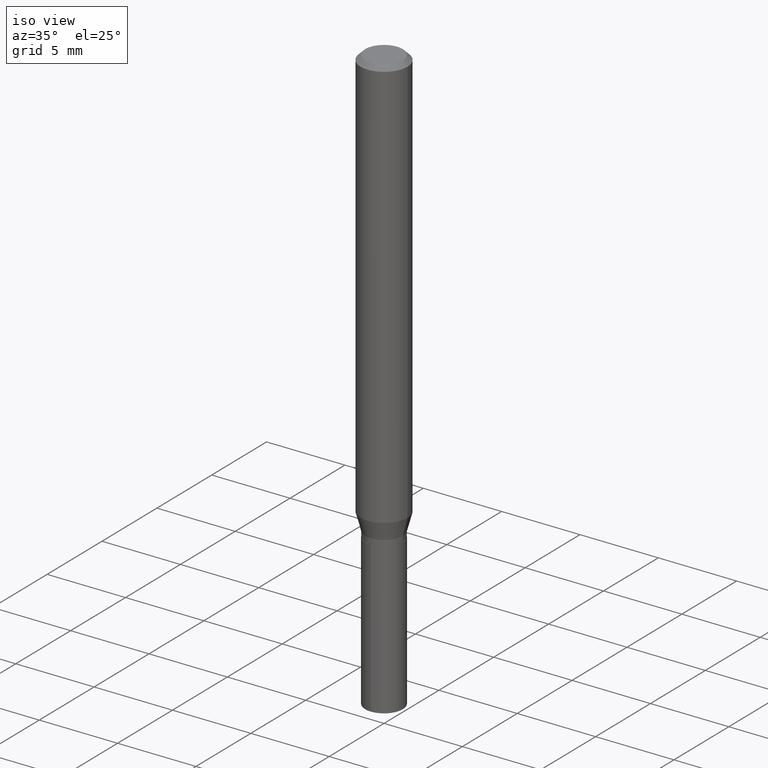
[diagram: clean part render]
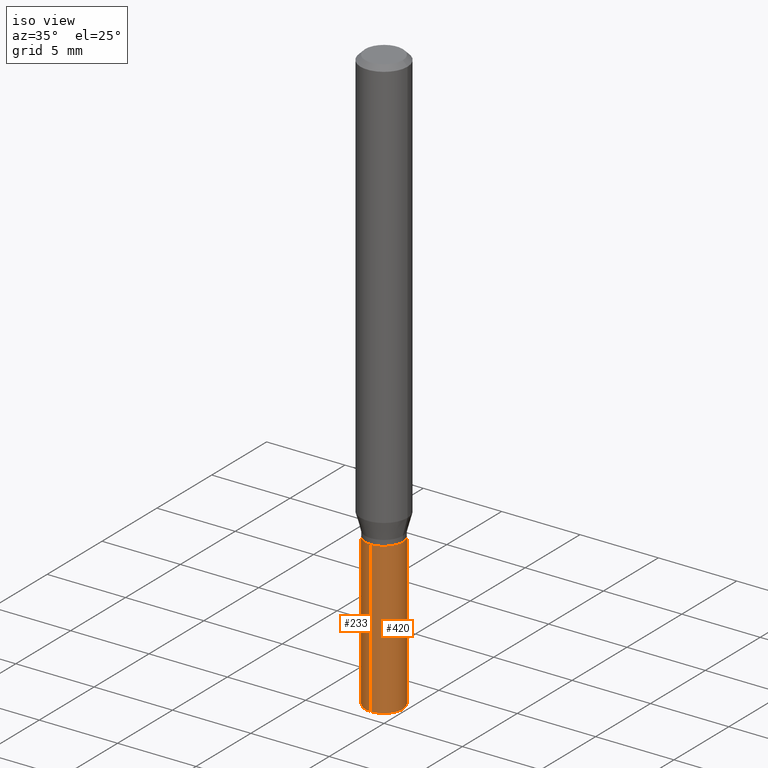
[diagram: same view with one multi-face feature highlighted, each face labeled with its STEP entity id]
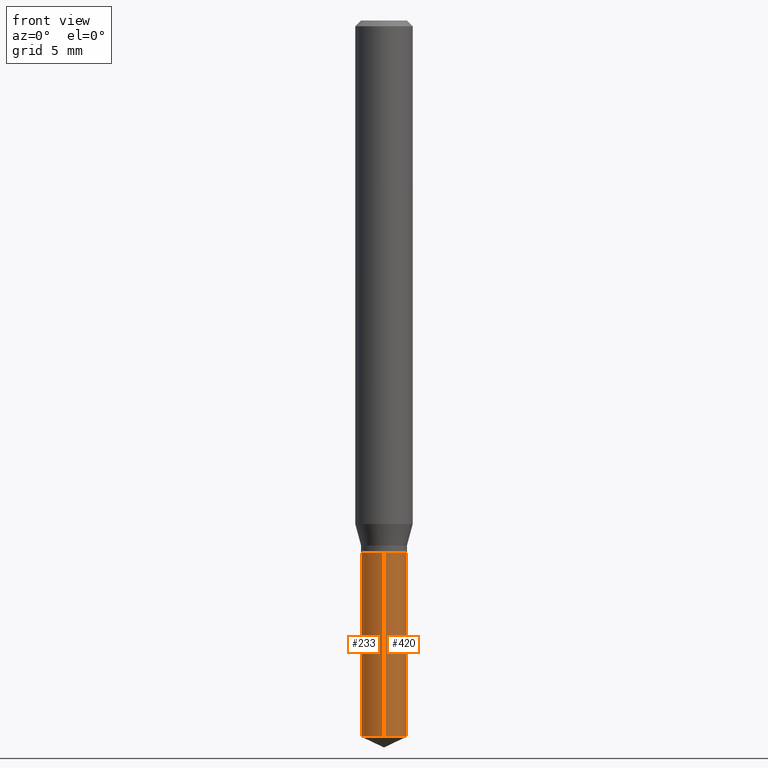
[diagram: same view with one multi-face feature highlighted, each face labeled with its STEP entity id]
A machine part, iso view. The highlighted faces form ONE feature: a constant-radius fillet chain: 2 tangent blend faces with common blend radius 1.2001 mm. The faces share edges in the B-rep.
A second angle (front view) of the same feature is appended — it is thin or edge-on in the first view.
Their STEP definitions:
[1] entity #420 (Cylinder):
#13 = CIRCLE ( 'NONE', #347, 0.04724999999999999339 ) ;
#17 = VERTEX_POINT ( 'NONE', #250 ) ;
#24 = DIRECTION ( 'NONE',  ( -2.445358326776455510E-29, 3.491639551644474585E-15, 1.000000000000000000 ) ) ;
#38 = DIRECTION ( 'NONE',  ( -2.445358326776455790E-29, 3.491639551644474585E-15, 1.000000000000000000 ) ) ;
#44 = EDGE_CURVE ( 'NONE', #17, #242, #376, .T. ) ;
#88 = DIRECTION ( 'NONE',  ( -2.445358326776455510E-29, 3.491639551644474585E-15, 1.000000000000000000 ) ) ;
#92 = CARTESIAN_POINT ( 'NONE',  ( 2.676565608369631794E-29, -3.821426325363822773E-15, -1.094499999999999806 ) ) ;
#93 = CARTESIAN_POINT ( 'NONE',  ( 2.676565608369631794E-29, -3.821426325363822773E-15, -1.094499999999999806 ) ) ;
#94 = EDGE_CURVE ( 'NONE', #240, #17, #13, .T. ) ;
#139 = FACE_OUTER_BOUND ( 'NONE', #188, .T. ) ;
#141 = VECTOR ( 'NONE', #393, 39.37007874015748143 ) ;
#152 = CARTESIAN_POINT ( 'NONE',  ( 3.604742842283059142E-29, -5.146737346403543071E-15, -1.474066963152176557 ) ) ;
#188 = EDGE_LOOP ( 'NONE', ( #404, #235, #344, #488 ) ) ;
#190 = DIRECTION ( 'NONE',  ( -6.982962677686265922E-15, -1.000000000000000000, 5.781688875479922944E-15 ) ) ;
#235 = ORIENTED_EDGE ( 'NONE', *, *, #44, .T. ) ;
#239 = LINE ( 'NONE', #294, #141 ) ;
#240 = VERTEX_POINT ( 'NONE', #352 ) ;
#242 = VERTEX_POINT ( 'NONE', #475 ) ;
#250 = CARTESIAN_POINT ( 'NONE',  ( 3.357314426466831841E-16, 0.04724999999999483086, -1.474066963152176779 ) ) ;
#264 = EDGE_CURVE ( 'NONE', #265, #242, #487, .T. ) ;
#265 = VERTEX_POINT ( 'NONE', #436 ) ;
#276 = EDGE_CURVE ( 'NONE', #240, #265, #239, .T. ) ;
#294 = CARTESIAN_POINT ( 'NONE',  ( -3.299449865206492354E-16, -0.04725000000000382366, -1.094499999999999806 ) ) ;
#306 = VECTOR ( 'NONE', #38, 39.37007874015748143 ) ;
#340 = AXIS2_PLACEMENT_3D ( 'NONE', #92, #88, #447 ) ;
#344 = ORIENTED_EDGE ( 'NONE', *, *, #264, .F. ) ;
#347 = AXIS2_PLACEMENT_3D ( 'NONE', #152, #373, #190 ) ;
#352 = CARTESIAN_POINT ( 'NONE',  ( -3.299449865206398677E-16, -0.04725000000000512818, -1.474066963152176113 ) ) ;
#371 = CARTESIAN_POINT ( 'NONE',  ( 3.357314426466740136E-16, 0.04724999999999617006, -1.094500000000000028 ) ) ;
#373 = DIRECTION ( 'NONE',  ( -2.445358326776455510E-29, 3.491639551644474585E-15, 1.000000000000000000 ) ) ;
#376 = LINE ( 'NONE', #371, #306 ) ;
#388 = AXIS2_PLACEMENT_3D ( 'NONE', #93, #24, #479 ) ;
#393 = DIRECTION ( 'NONE',  ( -2.445358326776455790E-29, 3.491639551644474585E-15, 1.000000000000000000 ) ) ;
#404 = ORIENTED_EDGE ( 'NONE', *, *, #94, .T. ) ;
#420 = ADVANCED_FACE ( 'NONE', ( #139 ), #433, .T. ) ;
#433 = CYLINDRICAL_SURFACE ( 'NONE', #340, 0.04724999999999999339 ) ;
#436 = CARTESIAN_POINT ( 'NONE',  ( -3.299449865206492354E-16, -0.04725000000000382366, -1.094499999999999806 ) ) ;
#447 = DIRECTION ( 'NONE',  ( -6.982962677686265922E-15, -1.000000000000000000, 2.890844437739961472E-15 ) ) ;
#475 = CARTESIAN_POINT ( 'NONE',  ( 3.357314426466833320E-16, 0.04724999999999617006, -1.094500000000000028 ) ) ;
#479 = DIRECTION ( 'NONE',  ( -6.982962677686265922E-15, -1.000000000000000000, 2.890844437739961472E-15 ) ) ;
#487 = CIRCLE ( 'NONE', #388, 0.04724999999999999339 ) ;
#488 = ORIENTED_EDGE ( 'NONE', *, *, #276, .F. ) ;
[2] entity #233 (Cylinder):
#17 = VERTEX_POINT ( 'NONE', #250 ) ;
#38 = DIRECTION ( 'NONE',  ( -2.445358326776455790E-29, 3.491639551644474585E-15, 1.000000000000000000 ) ) ;
#42 = ORIENTED_EDGE ( 'NONE', *, *, #222, .T. ) ;
#43 = EDGE_CURVE ( 'NONE', #242, #265, #202, .T. ) ;
#44 = EDGE_CURVE ( 'NONE', #17, #242, #376, .T. ) ;
#46 = DIRECTION ( 'NONE',  ( -6.982962677686265922E-15, -1.000000000000000000, 5.781688875479922944E-15 ) ) ;
#55 = FACE_OUTER_BOUND ( 'NONE', #248, .T. ) ;
#87 = AXIS2_PLACEMENT_3D ( 'NONE', #162, #285, #317 ) ;
#106 = DIRECTION ( 'NONE',  ( -6.982962677686265922E-15, -1.000000000000000000, 2.890844437739961472E-15 ) ) ;
#116 = DIRECTION ( 'NONE',  ( -2.445358326776455510E-29, 3.491639551644474585E-15, 1.000000000000000000 ) ) ;
#129 = CARTESIAN_POINT ( 'NONE',  ( 3.604742842283059142E-29, -5.146737346403543071E-15, -1.474066963152176557 ) ) ;
#141 = VECTOR ( 'NONE', #393, 39.37007874015748143 ) ;
#162 = CARTESIAN_POINT ( 'NONE',  ( 2.676565608369631794E-29, -3.821426325363822773E-15, -1.094499999999999806 ) ) ;
#194 = ORIENTED_EDGE ( 'NONE', *, *, #44, .F. ) ;
#202 = CIRCLE ( 'NONE', #289, 0.04724999999999999339 ) ;
#222 = EDGE_CURVE ( 'NONE', #17, #240, #316, .T. ) ;
#231 = CYLINDRICAL_SURFACE ( 'NONE', #87, 0.04724999999999999339 ) ;
#232 = ORIENTED_EDGE ( 'NONE', *, *, #276, .T. ) ;
#233 = ADVANCED_FACE ( 'NONE', ( #55 ), #231, .T. ) ;
#239 = LINE ( 'NONE', #294, #141 ) ;
#240 = VERTEX_POINT ( 'NONE', #352 ) ;
#242 = VERTEX_POINT ( 'NONE', #475 ) ;
#248 = EDGE_LOOP ( 'NONE', ( #194, #42, #232, #480 ) ) ;
#250 = CARTESIAN_POINT ( 'NONE',  ( 3.357314426466831841E-16, 0.04724999999999483086, -1.474066963152176779 ) ) ;
#265 = VERTEX_POINT ( 'NONE', #436 ) ;
#276 = EDGE_CURVE ( 'NONE', #240, #265, #239, .T. ) ;
#285 = DIRECTION ( 'NONE',  ( -2.445358326776455510E-29, 3.491639551644474585E-15, 1.000000000000000000 ) ) ;
#289 = AXIS2_PLACEMENT_3D ( 'NONE', #448, #450, #106 ) ;
#294 = CARTESIAN_POINT ( 'NONE',  ( -3.299449865206492354E-16, -0.04725000000000382366, -1.094499999999999806 ) ) ;
#306 = VECTOR ( 'NONE', #38, 39.37007874015748143 ) ;
#316 = CIRCLE ( 'NONE', #357, 0.04724999999999999339 ) ;
#317 = DIRECTION ( 'NONE',  ( -6.982962677686265922E-15, -1.000000000000000000, 2.890844437739961472E-15 ) ) ;
#352 = CARTESIAN_POINT ( 'NONE',  ( -3.299449865206398677E-16, -0.04725000000000512818, -1.474066963152176113 ) ) ;
#357 = AXIS2_PLACEMENT_3D ( 'NONE', #129, #116, #46 ) ;
#371 = CARTESIAN_POINT ( 'NONE',  ( 3.357314426466740136E-16, 0.04724999999999617006, -1.094500000000000028 ) ) ;
#376 = LINE ( 'NONE', #371, #306 ) ;
#393 = DIRECTION ( 'NONE',  ( -2.445358326776455790E-29, 3.491639551644474585E-15, 1.000000000000000000 ) ) ;
#436 = CARTESIAN_POINT ( 'NONE',  ( -3.299449865206492354E-16, -0.04725000000000382366, -1.094499999999999806 ) ) ;
#448 = CARTESIAN_POINT ( 'NONE',  ( 2.676565608369631794E-29, -3.821426325363822773E-15, -1.094499999999999806 ) ) ;
#450 = DIRECTION ( 'NONE',  ( -2.445358326776455510E-29, 3.491639551644474585E-15, 1.000000000000000000 ) ) ;
#475 = CARTESIAN_POINT ( 'NONE',  ( 3.357314426466833320E-16, 0.04724999999999617006, -1.094500000000000028 ) ) ;
#480 = ORIENTED_EDGE ( 'NONE', *, *, #43, .F. ) ;